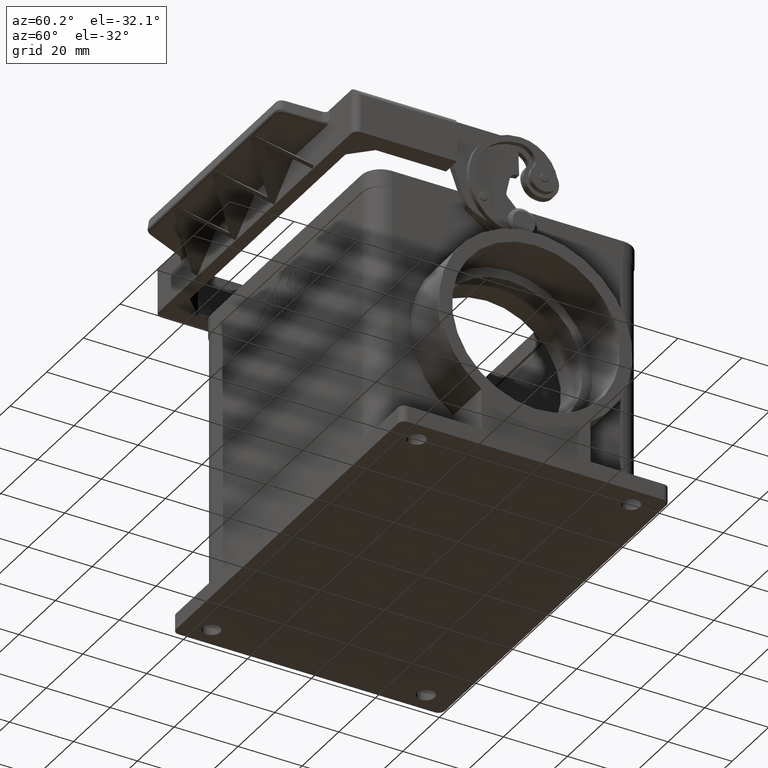
[diagram: clean part render]
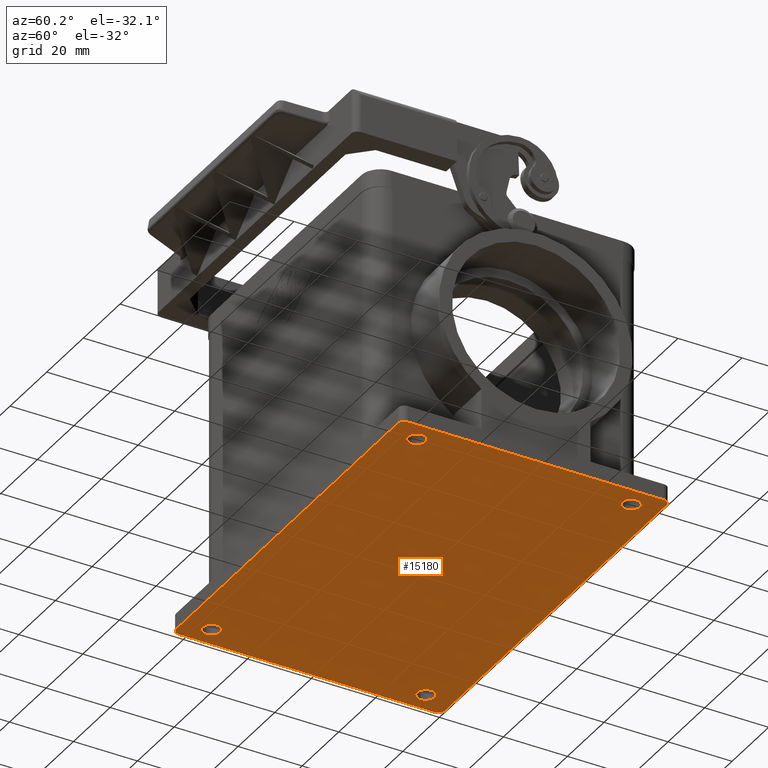
[diagram: same view with one face highlighted and labeled with its STEP entity id]
A machine part, auxiliary view. The second image highlights one B-rep face of the part: STEP entity #15180.
In plain terms, the highlighted planar face has unit normal (0, 0, 1).
Its self-contained STEP definition (entity closure, byte-faithful):
#51=CARTESIAN_POINT('',(-58.750000000000007,33.500000000000000,-55.0));
#52=VERTEX_POINT('',#51);
#68=CARTESIAN_POINT('',(-53.250000000000000,33.500000000000000,-55.0));
#69=VERTEX_POINT('',#68);
#76=CARTESIAN_POINT('',(-56.000000000000007,33.500000000000000,-55.0));
#77=DIRECTION('',(0.0,0.0,1.0));
#78=DIRECTION('',(-1.0,0.0,0.0));
#79=AXIS2_PLACEMENT_3D('',#76,#77,#78);
#80=CIRCLE('',#79,2.750000000000000);
#81=EDGE_CURVE('',#52,#69,#80,.T.);
#93=CARTESIAN_POINT('',(-58.750000000000007,-33.500000000000000,-55.0));
#94=VERTEX_POINT('',#93);
#110=CARTESIAN_POINT('',(-53.250000000000000,-33.500000000000000,-55.0));
#111=VERTEX_POINT('',#110);
#118=CARTESIAN_POINT('',(-56.000000000000007,-33.500000000000000,-55.0));
#119=DIRECTION('',(0.0,0.0,1.0));
#120=DIRECTION('',(-1.0,0.0,0.0));
#121=AXIS2_PLACEMENT_3D('',#118,#119,#120);
#122=CIRCLE('',#121,2.750000000000000);
#123=EDGE_CURVE('',#94,#111,#122,.T.);
#135=CARTESIAN_POINT('',(53.249999999999986,-33.500000000000000,-55.0));
#136=VERTEX_POINT('',#135);
#152=CARTESIAN_POINT('',(58.749999999999993,-33.500000000000000,-55.0));
#153=VERTEX_POINT('',#152);
#160=CARTESIAN_POINT('',(55.999999999999986,-33.500000000000000,-55.0));
#161=DIRECTION('',(0.0,0.0,1.0));
#162=DIRECTION('',(-1.0,0.0,0.0));
#163=AXIS2_PLACEMENT_3D('',#160,#161,#162);
#164=CIRCLE('',#163,2.750000000000000);
#165=EDGE_CURVE('',#136,#153,#164,.T.);
#177=CARTESIAN_POINT('',(53.249999999999986,33.500000000000000,-55.0));
#178=VERTEX_POINT('',#177);
#194=CARTESIAN_POINT('',(58.749999999999993,33.500000000000000,-55.0));
#195=VERTEX_POINT('',#194);
#202=CARTESIAN_POINT('',(55.999999999999986,33.500000000000000,-55.0));
#203=DIRECTION('',(0.0,0.0,1.0));
#204=DIRECTION('',(-1.0,0.0,0.0));
#205=AXIS2_PLACEMENT_3D('',#202,#203,#204);
#206=CIRCLE('',#205,2.750000000000000);
#207=EDGE_CURVE('',#178,#195,#206,.T.);
#217=CARTESIAN_POINT('',(61.914213562373078,-41.414213562373106,-55.0));
#218=VERTEX_POINT('',#217);
#227=CARTESIAN_POINT('',(62.499999999999986,-40.000000000000007,-55.0));
#228=VERTEX_POINT('',#227);
#229=CARTESIAN_POINT('',(60.499999999999979,-40.000000000000014,-55.0));
#230=DIRECTION('',(0.0,0.0,1.0));
#231=DIRECTION('',(0.707106781186551,-0.707106781186544,0.0));
#232=AXIS2_PLACEMENT_3D('',#229,#230,#231);
#233=CIRCLE('',#232,2.000000000000000);
#234=EDGE_CURVE('',#218,#228,#233,.T.);
#259=CARTESIAN_POINT('',(-61.914213562373099,41.414213562373085,-55.0));
#260=VERTEX_POINT('',#259);
#269=CARTESIAN_POINT('',(-62.500000000000000,39.999999999999993,-55.0));
#270=VERTEX_POINT('',#269);
#271=CARTESIAN_POINT('',(-60.500000000000000,39.999999999999993,-55.0));
#272=DIRECTION('',(0.0,0.0,1.0));
#273=DIRECTION('',(-0.707106781186549,0.707106781186546,0.0));
#274=AXIS2_PLACEMENT_3D('',#271,#272,#273);
#275=CIRCLE('',#274,2.000000000000000);
#276=EDGE_CURVE('',#260,#270,#275,.T.);
#301=CARTESIAN_POINT('',(-61.914213562373085,-41.414213562373085,-55.0));
#302=VERTEX_POINT('',#301);
#311=CARTESIAN_POINT('',(-60.499999999999986,-42.0,-55.0));
#312=VERTEX_POINT('',#311);
#313=CARTESIAN_POINT('',(-60.499999999999986,-40.0,-55.0));
#314=DIRECTION('',(0.0,0.0,1.0));
#315=DIRECTION('',(-0.707106781186551,-0.707106781186544,0.0));
#316=AXIS2_PLACEMENT_3D('',#313,#314,#315);
#317=CIRCLE('',#316,2.000000000000000);
#318=EDGE_CURVE('',#302,#312,#317,.T.);
#343=CARTESIAN_POINT('',(61.914213562373071,41.414213562373099,-55.0));
#344=VERTEX_POINT('',#343);
#353=CARTESIAN_POINT('',(60.499999999999972,42.000000000000021,-55.0));
#354=VERTEX_POINT('',#353);
#355=CARTESIAN_POINT('',(60.499999999999972,40.000000000000014,-55.0));
#356=DIRECTION('',(0.0,0.0,1.0));
#357=DIRECTION('',(0.707106781186551,0.707106781186544,0.0));
#358=AXIS2_PLACEMENT_3D('',#355,#356,#357);
#359=CIRCLE('',#358,2.000000000000000);
#360=EDGE_CURVE('',#344,#354,#359,.T.);
#5983=CARTESIAN_POINT('',(60.499999999999979,-42.000000000000021,-55.0));
#5984=VERTEX_POINT('',#5983);
#5985=CARTESIAN_POINT('',(60.499999999999979,-42.000000000000021,-55.0));
#5986=DIRECTION('',(-1.0,0.0,0.0));
#5987=VECTOR('',#5986,120.999999999999970);
#5988=LINE('',#5985,#5987);
#5989=EDGE_CURVE('',#5984,#312,#5988,.T.);
#15076=CARTESIAN_POINT('',(2.887835E-016,0.0,-55.0));
#15077=DIRECTION('',(0.0,0.0,1.0));
#15078=DIRECTION('',(1.0,0.0,0.0));
#15079=AXIS2_PLACEMENT_3D('',#15076,#15077,#15078);
#15080=PLANE('',#15079);
#15081=CARTESIAN_POINT('',(-62.500000000000000,-40.0,-55.0));
#15082=VERTEX_POINT('',#15081);
#15083=CARTESIAN_POINT('',(-62.500000000000000,-40.0,-55.0));
#15084=DIRECTION('',(0.0,1.0,0.0));
#15085=VECTOR('',#15084,80.0);
#15086=LINE('',#15083,#15085);
#15087=EDGE_CURVE('',#15082,#270,#15086,.T.);
#15088=ORIENTED_EDGE('',*,*,#15087,.T.);
#15089=ORIENTED_EDGE('',*,*,#276,.F.);
#15090=CARTESIAN_POINT('',(-60.500000000000000,42.0,-55.0));
#15091=VERTEX_POINT('',#15090);
#15092=CARTESIAN_POINT('',(-60.500000000000000,39.999999999999993,-55.0));
#15093=DIRECTION('',(0.0,0.0,1.0));
#15094=DIRECTION('',(-0.707106781186549,0.707106781186546,0.0));
#15095=AXIS2_PLACEMENT_3D('',#15092,#15093,#15094);
#15096=CIRCLE('',#15095,2.000000000000000);
#15097=EDGE_CURVE('',#15091,#260,#15096,.T.);
#15098=ORIENTED_EDGE('',*,*,#15097,.F.);
#15099=CARTESIAN_POINT('',(-60.500000000000000,42.0,-55.0));
#15100=DIRECTION('',(1.0,0.0,0.0));
#15101=VECTOR('',#15100,120.999999999999970);
#15102=LINE('',#15099,#15101);
#15103=EDGE_CURVE('',#15091,#354,#15102,.T.);
#15104=ORIENTED_EDGE('',*,*,#15103,.T.);
#15105=ORIENTED_EDGE('',*,*,#360,.F.);
#15106=CARTESIAN_POINT('',(62.499999999999986,40.000000000000014,-55.0));
#15107=VERTEX_POINT('',#15106);
#15108=CARTESIAN_POINT('',(60.499999999999972,40.000000000000014,-55.0));
#15109=DIRECTION('',(0.0,0.0,1.0));
#15110=DIRECTION('',(0.707106781186551,0.707106781186544,0.0));
#15111=AXIS2_PLACEMENT_3D('',#15108,#15109,#15110);
#15112=CIRCLE('',#15111,2.000000000000000);
#15113=EDGE_CURVE('',#15107,#344,#15112,.T.);
#15114=ORIENTED_EDGE('',*,*,#15113,.F.);
#15115=CARTESIAN_POINT('',(62.499999999999986,40.000000000000014,-55.0));
#15116=DIRECTION('',(0.0,-1.0,0.0));
#15117=VECTOR('',#15116,80.000000000000028);
#15118=LINE('',#15115,#15117);
#15119=EDGE_CURVE('',#15107,#228,#15118,.T.);
#15120=ORIENTED_EDGE('',*,*,#15119,.T.);
#15121=ORIENTED_EDGE('',*,*,#234,.F.);
#15122=CARTESIAN_POINT('',(60.499999999999979,-40.000000000000014,-55.0));
#15123=DIRECTION('',(0.0,0.0,1.0));
#15124=DIRECTION('',(0.707106781186551,-0.707106781186544,0.0));
#15125=AXIS2_PLACEMENT_3D('',#15122,#15123,#15124);
#15126=CIRCLE('',#15125,2.000000000000000);
#15127=EDGE_CURVE('',#5984,#218,#15126,.T.);
#15128=ORIENTED_EDGE('',*,*,#15127,.F.);
#15129=ORIENTED_EDGE('',*,*,#5989,.T.);
#15130=ORIENTED_EDGE('',*,*,#318,.F.);
#15131=CARTESIAN_POINT('',(-60.499999999999986,-40.0,-55.0));
#15132=DIRECTION('',(0.0,0.0,1.0));
#15133=DIRECTION('',(-0.707106781186551,-0.707106781186544,0.0));
#15134=AXIS2_PLACEMENT_3D('',#15131,#15132,#15133);
#15135=CIRCLE('',#15134,2.000000000000000);
#15136=EDGE_CURVE('',#15082,#302,#15135,.T.);
#15137=ORIENTED_EDGE('',*,*,#15136,.F.);
#15138=EDGE_LOOP('',(#15088,#15089,#15098,#15104,#15105,#15114,#15120,#15121,#15128,#15129,#15130,#15137));
#15139=FACE_OUTER_BOUND('',#15138,.T.);
#15140=CARTESIAN_POINT('',(55.999999999999986,33.500000000000000,-55.0));
#15141=DIRECTION('',(0.0,0.0,1.0));
#15142=DIRECTION('',(-1.0,0.0,0.0));
#15143=AXIS2_PLACEMENT_3D('',#15140,#15141,#15142);
#15144=CIRCLE('',#15143,2.750000000000000);
#15145=EDGE_CURVE('',#195,#178,#15144,.T.);
#15146=ORIENTED_EDGE('',*,*,#15145,.T.);
#15147=ORIENTED_EDGE('',*,*,#207,.T.);
#15148=EDGE_LOOP('',(#15146,#15147));
#15149=FACE_BOUND('',#15148,.T.);
#15150=CARTESIAN_POINT('',(55.999999999999986,-33.500000000000000,-55.0));
#15151=DIRECTION('',(0.0,0.0,1.0));
#15152=DIRECTION('',(-1.0,0.0,0.0));
#15153=AXIS2_PLACEMENT_3D('',#15150,#15151,#15152);
#15154=CIRCLE('',#15153,2.750000000000000);
#15155=EDGE_CURVE('',#153,#136,#15154,.T.);
#15156=ORIENTED_EDGE('',*,*,#15155,.T.);
#15157=ORIENTED_EDGE('',*,*,#165,.T.);
#15158=EDGE_LOOP('',(#15156,#15157));
#15159=FACE_BOUND('',#15158,.T.);
#15160=CARTESIAN_POINT('',(-56.000000000000007,-33.500000000000000,-55.0));
#15161=DIRECTION('',(0.0,0.0,1.0));
#15162=DIRECTION('',(-1.0,0.0,0.0));
#15163=AXIS2_PLACEMENT_3D('',#15160,#15161,#15162);
#15164=CIRCLE('',#15163,2.750000000000000);
#15165=EDGE_CURVE('',#111,#94,#15164,.T.);
#15166=ORIENTED_EDGE('',*,*,#15165,.T.);
#15167=ORIENTED_EDGE('',*,*,#123,.T.);
#15168=EDGE_LOOP('',(#15166,#15167));
#15169=FACE_BOUND('',#15168,.T.);
#15170=CARTESIAN_POINT('',(-56.000000000000007,33.500000000000000,-55.0));
#15171=DIRECTION('',(0.0,0.0,1.0));
#15172=DIRECTION('',(-1.0,0.0,0.0));
#15173=AXIS2_PLACEMENT_3D('',#15170,#15171,#15172);
#15174=CIRCLE('',#15173,2.750000000000000);
#15175=EDGE_CURVE('',#69,#52,#15174,.T.);
#15176=ORIENTED_EDGE('',*,*,#15175,.T.);
#15177=ORIENTED_EDGE('',*,*,#81,.T.);
#15178=EDGE_LOOP('',(#15176,#15177));
#15179=FACE_BOUND('',#15178,.T.);
#15180=ADVANCED_FACE('',(#15139,#15149,#15159,#15169,#15179),#15080,.F.);